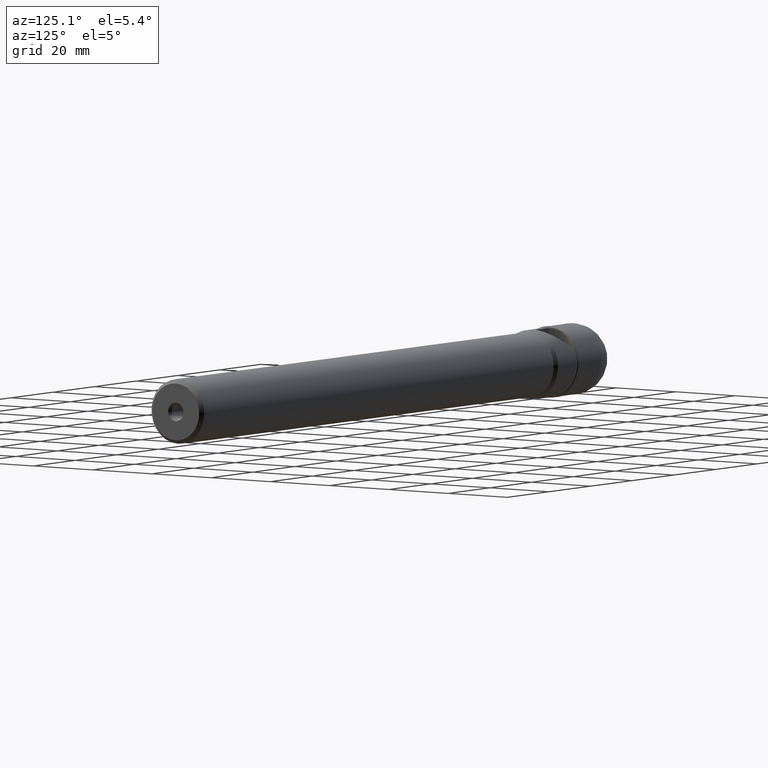
[diagram: clean part render]
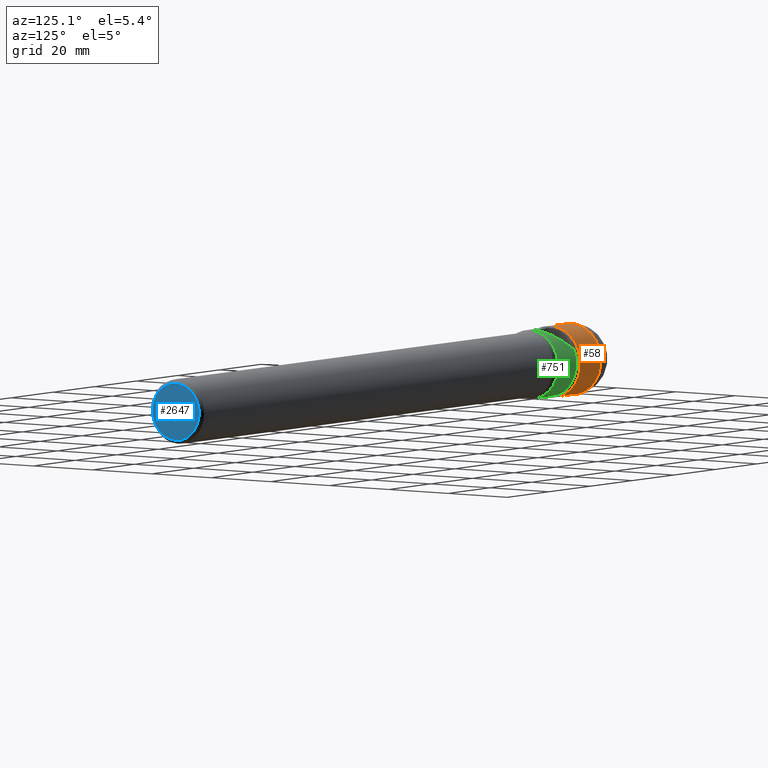
[diagram: same view with three faces highlighted in distinct colors, each labeled with its STEP entity id]
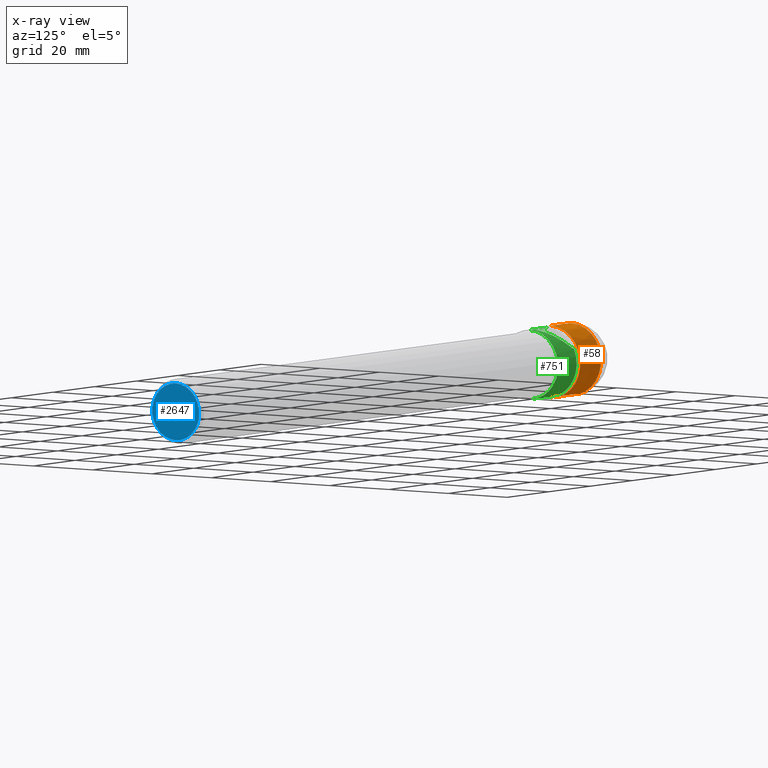
[diagram: x-ray of the same camera — body ghosted, the three highlighted faces saturated]
A machine part, auxiliary view with three faces highlighted in distinct colors.
The next image is the same camera in x-ray (body ghosted, the three faces saturated) — at least one of them is partly hidden behind the body in this view.
Their STEP definitions:

[orange] entity #58 — the highlighted conical surface has half-angle 0.193 deg.
#55 = EDGE_CURVE ( 'NONE', #1018, #1737, #1611, .T. ) ;
#58 = ADVANCED_FACE ( 'NONE', ( #2640 ), #3410, .T. ) ;
#113 = EDGE_CURVE ( 'NONE', #3440, #2303, #1748, .T. ) ;
#256 = AXIS2_PLACEMENT_3D ( 'NONE', #3720, #792, #3131 ) ;
#289 = DIRECTION ( 'NONE',  ( 1.000000000000000000, 0.0000000000000000000, 0.0000000000000000000 ) ) ;
#396 = ORIENTED_EDGE ( 'NONE', *, *, #2008, .F. ) ;
#731 = LINE ( 'NONE', #1914, #1837 ) ;
#791 = AXIS2_PLACEMENT_3D ( 'NONE', #2410, #1469, #2374 ) ;
#792 = DIRECTION ( 'NONE',  ( -1.000000000000000000, -0.0000000000000000000, -0.0000000000000000000 ) ) ;
#1018 = VERTEX_POINT ( 'NONE', #2857 ) ;
#1383 = DIRECTION ( 'NONE',  ( 0.9999943437071451280, 0.0000000000000000000, -0.003363413997101217124 ) ) ;
#1392 = AXIS2_PLACEMENT_3D ( 'NONE', #3260, #289, #2286 ) ;
#1469 = DIRECTION ( 'NONE',  ( -1.000000000000000000, -0.0000000000000000000, -0.0000000000000000000 ) ) ;
#1611 = CIRCLE ( 'NONE', #791, 9.917655915778976095 ) ;
#1644 = LINE ( 'NONE', #3683, #3546 ) ;
#1694 = CARTESIAN_POINT ( 'NONE',  ( 9.977918817990545364, 1.214562557230353628E-15, -9.917655915778977871 ) ) ;
#1737 = VERTEX_POINT ( 'NONE', #1694 ) ;
#1748 = CIRCLE ( 'NONE', #256, 9.951121269423111926 ) ;
#1837 = VECTOR ( 'NONE', #1383, 1000.000000000000114 ) ;
#1848 = ORIENTED_EDGE ( 'NONE', *, *, #55, .F. ) ;
#1914 = CARTESIAN_POINT ( 'NONE',  ( 9.977918817990545364, 0.0000000000000000000, -9.917655915778976095 ) ) ;
#2008 = EDGE_CURVE ( 'NONE', #1737, #2303, #731, .T. ) ;
#2010 = ORIENTED_EDGE ( 'NONE', *, *, #113, .T. ) ;
#2094 = CARTESIAN_POINT ( 'NONE',  ( 19.92767950256220999, 1.218660881052615963E-15, 9.951121269423111926 ) ) ;
#2209 = ORIENTED_EDGE ( 'NONE', *, *, #3126, .T. ) ;
#2286 = DIRECTION ( 'NONE',  ( 0.0000000000000000000, 0.0000000000000000000, -1.000000000000000000 ) ) ;
#2303 = VERTEX_POINT ( 'NONE', #3734 ) ;
#2374 = DIRECTION ( 'NONE',  ( 0.0000000000000000000, 0.0000000000000000000, 1.000000000000000000 ) ) ;
#2410 = CARTESIAN_POINT ( 'NONE',  ( 9.977918817990545364, 0.0000000000000000000, 0.0000000000000000000 ) ) ;
#2640 = FACE_OUTER_BOUND ( 'NONE', #3626, .T. ) ;
#2857 = CARTESIAN_POINT ( 'NONE',  ( 9.977918817990545364, 0.0000000000000000000, 9.917655915778977871 ) ) ;
#3126 = EDGE_CURVE ( 'NONE', #1018, #3440, #1644, .T. ) ;
#3131 = DIRECTION ( 'NONE',  ( 0.0000000000000000000, 0.0000000000000000000, 1.000000000000000000 ) ) ;
#3260 = CARTESIAN_POINT ( 'NONE',  ( 9.977918817990545364, 0.0000000000000000000, 0.0000000000000000000 ) ) ;
#3410 = CONICAL_SURFACE ( 'NONE', #1392, 9.917655915778976095, 0.003363420338600418315 ) ;
#3440 = VERTEX_POINT ( 'NONE', #2094 ) ;
#3546 = VECTOR ( 'NONE', #3705, 1000.000000000000114 ) ;
#3626 = EDGE_LOOP ( 'NONE', ( #1848, #2209, #2010, #396 ) ) ;
#3683 = CARTESIAN_POINT ( 'NONE',  ( 9.977918817990545364, 1.214562557230353431E-15, 9.917655915778976095 ) ) ;
#3705 = DIRECTION ( 'NONE',  ( 0.9999943437071451280, 4.118994185757410927E-19, 0.003363413997101217124 ) ) ;
#3720 = CARTESIAN_POINT ( 'NONE',  ( 19.92767950256220999, 0.0000000000000000000, 0.0000000000000000000 ) ) ;
#3734 = CARTESIAN_POINT ( 'NONE',  ( 19.92767950256220999, 0.0000000000000000000, -9.951121269423111926 ) ) ;

[blue] entity #2647 — the highlighted planar face has unit normal (-1, 0, -0).
#69 = ORIENTED_EDGE ( 'NONE', *, *, #346, .T. ) ;
#144 = AXIS2_PLACEMENT_3D ( 'NONE', #868, #2726, #1001 ) ;
#188 = VERTEX_POINT ( 'NONE', #2803 ) ;
#263 = CARTESIAN_POINT ( 'NONE',  ( 200.0372464299999820, 0.0000000000000000000, 0.0000000000000000000 ) ) ;
#293 = DIRECTION ( 'NONE',  ( -1.000000000000000000, -0.0000000000000000000, -0.0000000000000000000 ) ) ;
#296 = FACE_OUTER_BOUND ( 'NONE', #2665, .T. ) ;
#346 = EDGE_CURVE ( 'NONE', #188, #2931, #1282, .T. ) ;
#475 = AXIS2_PLACEMENT_3D ( 'NONE', #263, #3396, #1334 ) ;
#478 = VERTEX_POINT ( 'NONE', #2201 ) ;
#530 = CARTESIAN_POINT ( 'NONE',  ( 200.0372464299999820, 7.900000000000000355, 0.0000000000000000000 ) ) ;
#544 = DIRECTION ( 'NONE',  ( 0.0000000000000000000, 0.0000000000000000000, 1.000000000000000000 ) ) ;
#868 = CARTESIAN_POINT ( 'NONE',  ( 200.0372464299999820, 0.0000000000000000000, 0.0000000000000000000 ) ) ;
#982 = DIRECTION ( 'NONE',  ( -1.000000000000000000, -0.0000000000000000000, -0.0000000000000000000 ) ) ;
#983 = EDGE_CURVE ( 'NONE', #1773, #478, #3437, .T. ) ;
#1001 = DIRECTION ( 'NONE',  ( 0.0000000000000000000, 0.0000000000000000000, 1.000000000000000000 ) ) ;
#1282 = CIRCLE ( 'NONE', #144, 2.577350269189619514 ) ;
#1334 = DIRECTION ( 'NONE',  ( 0.0000000000000000000, 0.0000000000000000000, 1.000000000000000000 ) ) ;
#1539 = DIRECTION ( 'NONE',  ( 0.0000000000000000000, 0.0000000000000000000, 1.000000000000000000 ) ) ;
#1647 = FACE_BOUND ( 'NONE', #1659, .T. ) ;
#1659 = EDGE_LOOP ( 'NONE', ( #2633, #69 ) ) ;
#1773 = VERTEX_POINT ( 'NONE', #3399 ) ;
#2201 = CARTESIAN_POINT ( 'NONE',  ( 200.0372464299999820, 0.0000000000000000000, 7.900000000000000355 ) ) ;
#2353 = CIRCLE ( 'NONE', #475, 7.900000000000000355 ) ;
#2497 = AXIS2_PLACEMENT_3D ( 'NONE', #530, #2860, #2827 ) ;
#2561 = CARTESIAN_POINT ( 'NONE',  ( 200.0372464299999820, 0.0000000000000000000, 0.0000000000000000000 ) ) ;
#2633 = ORIENTED_EDGE ( 'NONE', *, *, #3408, .T. ) ;
#2647 = ADVANCED_FACE ( 'NONE', ( #296, #1647 ), #3139, .F. ) ;
#2665 = EDGE_LOOP ( 'NONE', ( #3462, #2868 ) ) ;
#2726 = DIRECTION ( 'NONE',  ( -1.000000000000000000, -0.0000000000000000000, -0.0000000000000000000 ) ) ;
#2803 = CARTESIAN_POINT ( 'NONE',  ( 200.0372464299999820, 3.156343757444636305E-16, 2.577350269189619514 ) ) ;
#2827 = DIRECTION ( 'NONE',  ( -0.0000000000000000000, 0.0000000000000000000, 1.000000000000000000 ) ) ;
#2860 = DIRECTION ( 'NONE',  ( -1.000000000000000000, 0.0000000000000000000, -0.0000000000000000000 ) ) ;
#2868 = ORIENTED_EDGE ( 'NONE', *, *, #983, .F. ) ;
#2931 = VERTEX_POINT ( 'NONE', #3318 ) ;
#2962 = AXIS2_PLACEMENT_3D ( 'NONE', #3640, #982, #1539 ) ;
#3074 = CIRCLE ( 'NONE', #2962, 2.577350269189619514 ) ;
#3139 = PLANE ( 'NONE',  #2497 ) ;
#3318 = CARTESIAN_POINT ( 'NONE',  ( 200.0372464299999820, 0.0000000000000000000, -2.577350269189619514 ) ) ;
#3396 = DIRECTION ( 'NONE',  ( -1.000000000000000000, -0.0000000000000000000, -0.0000000000000000000 ) ) ;
#3399 = CARTESIAN_POINT ( 'NONE',  ( 200.0372464299999820, 1.028703311283777374E-15, -7.900000000000000355 ) ) ;
#3408 = EDGE_CURVE ( 'NONE', #2931, #188, #3074, .T. ) ;
#3437 = CIRCLE ( 'NONE', #3562, 7.900000000000000355 ) ;
#3462 = ORIENTED_EDGE ( 'NONE', *, *, #3536, .F. ) ;
#3536 = EDGE_CURVE ( 'NONE', #478, #1773, #2353, .T. ) ;
#3562 = AXIS2_PLACEMENT_3D ( 'NONE', #2561, #293, #544 ) ;
#3640 = CARTESIAN_POINT ( 'NONE',  ( 200.0372464299999820, 0.0000000000000000000, 0.0000000000000000000 ) ) ;

[green] entity #751 — the highlighted cylindrical surface (edge-blend (fillet) strip) has radius 9.5431 mm, axis along (-1, -0, -0).
#22 = ORIENTED_EDGE ( 'NONE', *, *, #159, .T. ) ;
#41 = CARTESIAN_POINT ( 'NONE',  ( 22.50406135753765824, 1.902478379999999802, -9.351572390519709899 ) ) ;
#98 = ORIENTED_EDGE ( 'NONE', *, *, #2741, .T. ) ;
#159 = EDGE_CURVE ( 'NONE', #534, #3333, #2840, .T. ) ;
#192 = CARTESIAN_POINT ( 'NONE',  ( 22.22240437256096257, 0.0000000000000000000, 9.543129998145154502 ) ) ;
#223 = EDGE_CURVE ( 'NONE', #2336, #1190, #1361, .T. ) ;
#225 = CIRCLE ( 'NONE', #2333, 9.543129998145154502 ) ;
#235 = CARTESIAN_POINT ( 'NONE',  ( -4.762142644779060241, 3.402478379999999802, -8.915967195718618399 ) ) ;
#295 = B_SPLINE_CURVE_WITH_KNOTS ( 'NONE', 3,
 ( #1526, #2698, #1009, #2160, #1325, #3315, #3069, #2785 ),
 .UNSPECIFIED., .F., .F.,
 ( 4, 2, 2, 4 ),
 ( 4.336808689942017255E-19, 0.0001028661641202389791, 0.0002057323282404775245, 0.0004114646564809544527 ),
 .UNSPECIFIED. ) ;
#374 = VERTEX_POINT ( 'NONE', #408 ) ;
#382 = VERTEX_POINT ( 'NONE', #1845 ) ;
#391 = EDGE_CURVE ( 'NONE', #534, #1480, #896, .T. ) ;
#408 = CARTESIAN_POINT ( 'NONE',  ( 21.12077164187794764, 8.651164288950001335, 4.028484405715644812 ) ) ;
#451 = CARTESIAN_POINT ( 'NONE',  ( 22.50406135753765824, 1.902478379999999802, -9.351572390519709899 ) ) ;
#534 = VERTEX_POINT ( 'NONE', #1081 ) ;
#550 = CARTESIAN_POINT ( 'NONE',  ( 22.19334719174611337, 3.402478379999999802, -8.915967195718618399 ) ) ;
#751 = ADVANCED_FACE ( 'NONE', ( #3648 ), #1579, .T. ) ;
#772 = EDGE_CURVE ( 'NONE', #2181, #2336, #2326, .T. ) ;
#799 = CARTESIAN_POINT ( 'NONE',  ( 28.33596297117660612, 0.8509774399999997518, 9.505112706228631581 ) ) ;
#852 = VECTOR ( 'NONE', #3701, 1000.000000000000000 ) ;
#855 =( BOUNDED_CURVE ( )  B_SPLINE_CURVE ( 3, ( #41, #1445, #3114, #1153 ),
 .UNSPECIFIED., .F., .T. ) 
 B_SPLINE_CURVE_WITH_KNOTS ( ( 4, 4 ),
 ( 2.264321295998039663, 2.465021783903519115 ),
 .UNSPECIFIED. ) 
 CURVE ( )  GEOMETRIC_REPRESENTATION_ITEM ( )  RATIONAL_B_SPLINE_CURVE ( ( 1.000000000000000000, 0.9966460921328584854, 0.9966460921328584854, 1.000000000000000000 ) ) 
 REPRESENTATION_ITEM ( '' )  );
#857 = CARTESIAN_POINT ( 'NONE',  ( 28.33596297117660612, 0.8509774399999997518, 9.505112706228631581 ) ) ;
#896 =( BOUNDED_CURVE ( )  B_SPLINE_CURVE ( 3, ( #550, #1688, #3046, #451 ),
 .UNSPECIFIED., .F., .T. ) 
 B_SPLINE_CURVE_WITH_KNOTS ( ( 4, 4 ),
 ( 2.777034049507229430, 2.940892165684313664 ),
 .UNSPECIFIED. ) 
 CURVE ( )  GEOMETRIC_REPRESENTATION_ITEM ( )  RATIONAL_B_SPLINE_CURVE ( ( 1.000000000000000000, 0.9977637944202043530, 0.9977637944202043530, 1.000000000000000000 ) ) 
 REPRESENTATION_ITEM ( '' )  );
#988 = ORIENTED_EDGE ( 'NONE', *, *, #1428, .T. ) ;
#1009 = CARTESIAN_POINT ( 'NONE',  ( 28.32755036790564773, 0.7818658670980034309, 9.511085161488065154 ) ) ;
#1024 = DIRECTION ( 'NONE',  ( 0.0000000000000000000, 0.0000000000000000000, 1.000000000000000000 ) ) ;
#1047 = CARTESIAN_POINT ( 'NONE',  ( 21.12077164187794764, 0.0000000000000000000, 0.0000000000000000000 ) ) ;
#1081 = CARTESIAN_POINT ( 'NONE',  ( 22.19334719174611337, 3.402478379999999802, -8.915967195718618399 ) ) ;
#1127 = CARTESIAN_POINT ( 'NONE',  ( 30.03724642999997130, 1.168696360607554739E-15, -9.543129998145152726 ) ) ;
#1153 = CARTESIAN_POINT ( 'NONE',  ( 23.73039629956289076, 1.168696360607554936E-15, -9.543129998145154502 ) ) ;
#1190 = VERTEX_POINT ( 'NONE', #2944 ) ;
#1199 = VERTEX_POINT ( 'NONE', #2965 ) ;
#1240 = AXIS2_PLACEMENT_3D ( 'NONE', #1876, #2988, #1024 ) ;
#1284 = EDGE_CURVE ( 'NONE', #2450, #1199, #295, .T. ) ;
#1316 = EDGE_CURVE ( 'NONE', #382, #1922, #1395, .T. ) ;
#1325 = CARTESIAN_POINT ( 'NONE',  ( 28.25559429379943310, 0.7080737065002691288, 9.516837217228241386 ) ) ;
#1361 = LINE ( 'NONE', #3169, #852 ) ;
#1369 = ORIENTED_EDGE ( 'NONE', *, *, #1316, .F. ) ;
#1381 = CARTESIAN_POINT ( 'NONE',  ( 27.92624542388029951, 4.324652596164970220, 9.194120161148360282 ) ) ;
#1395 =( BOUNDED_CURVE ( )  B_SPLINE_CURVE ( 3, ( #192, #1560, #1621, #2751 ),
 .UNSPECIFIED., .F., .T. ) 
 B_SPLINE_CURVE_WITH_KNOTS ( ( 4, 4 ),
 ( 2.452695705409258853, 2.520962967106989083 ),
 .UNSPECIFIED. ) 
 CURVE ( )  GEOMETRIC_REPRESENTATION_ITEM ( )  RATIONAL_B_SPLINE_CURVE ( ( 1.000000000000000000, 0.9996116694543681902, 0.9996116694543681902, 1.000000000000000000 ) ) 
 REPRESENTATION_ITEM ( '' )  );
#1408 = VECTOR ( 'NONE', #3429, 1000.000000000000000 ) ;
#1411 = CARTESIAN_POINT ( 'NONE',  ( -4.762142644779060241, 0.6509774400000000183, 9.520901140864186374 ) ) ;
#1428 = EDGE_CURVE ( 'NONE', #1199, #1922, #3108, .T. ) ;
#1445 = CARTESIAN_POINT ( 'NONE',  ( 22.95394448141299293, 1.275804350308979540, -9.479062586072627639 ) ) ;
#1480 = VERTEX_POINT ( 'NONE', #1643 ) ;
#1526 = CARTESIAN_POINT ( 'NONE',  ( 28.33596297117660612, 0.8509774399999997518, 9.505112706228631581 ) ) ;
#1544 = ORIENTED_EDGE ( 'NONE', *, *, #1284, .T. ) ;
#1554 = CARTESIAN_POINT ( 'NONE',  ( -4.762142644779060241, 0.0000000000000000000, 9.543129998145154502 ) ) ;
#1560 = CARTESIAN_POINT ( 'NONE',  ( 22.34528775637009801, 0.2172032975560520829, 9.543129998145156279 ) ) ;
#1562 = CARTESIAN_POINT ( 'NONE',  ( -4.762142644779060241, 0.0000000000000000000, 0.0000000000000000000 ) ) ;
#1579 = CYLINDRICAL_SURFACE ( 'NONE', #2865, 9.543129998145154502 ) ;
#1617 = CARTESIAN_POINT ( 'NONE',  ( 21.12077164187796186, 3.402478379999999802, -8.915967195718618399 ) ) ;
#1621 = CARTESIAN_POINT ( 'NONE',  ( 22.46300699726473837, 0.4342800750995183257, 9.535717500552264525 ) ) ;
#1628 = DIRECTION ( 'NONE',  ( 1.000000000000000000, 0.0000000000000000000, 0.0000000000000000000 ) ) ;
#1643 = CARTESIAN_POINT ( 'NONE',  ( 22.50406135753765824, 1.902478379999999802, -9.351572390519709899 ) ) ;
#1688 = CARTESIAN_POINT ( 'NONE',  ( 22.32605496847934390, 2.914948253501325137, -9.102016636973509378 ) ) ;
#1825 = DIRECTION ( 'NONE',  ( -1.000000000000000000, -0.0000000000000000000, -0.0000000000000000000 ) ) ;
#1845 = CARTESIAN_POINT ( 'NONE',  ( 22.22240437256096257, 0.0000000000000000000, 9.543129998145154502 ) ) ;
#1876 = CARTESIAN_POINT ( 'NONE',  ( 30.03724642999997130, 0.0000000000000000000, 0.0000000000000000000 ) ) ;
#1910 = EDGE_CURVE ( 'NONE', #2181, #382, #3028, .T. ) ;
#1922 = VERTEX_POINT ( 'NONE', #3048 ) ;
#2020 = VECTOR ( 'NONE', #2167, 1000.000000000000000 ) ;
#2031 = EDGE_CURVE ( 'NONE', #3333, #374, #225, .T. ) ;
#2147 = DIRECTION ( 'NONE',  ( 0.0000000000000000000, 0.0000000000000000000, 1.000000000000000000 ) ) ;
#2158 = ORIENTED_EDGE ( 'NONE', *, *, #391, .F. ) ;
#2160 = CARTESIAN_POINT ( 'NONE',  ( 28.28461132773247400, 0.7281822220888067854, 9.515345807412634471 ) ) ;
#2167 = DIRECTION ( 'NONE',  ( -1.000000000000000000, -0.0000000000000000000, -0.0000000000000000000 ) ) ;
#2181 = VERTEX_POINT ( 'NONE', #2358 ) ;
#2203 = DIRECTION ( 'NONE',  ( 0.0000000000000000000, 0.0000000000000000000, 1.000000000000000000 ) ) ;
#2210 = DIRECTION ( 'NONE',  ( -1.000000000000000000, -0.0000000000000000000, -0.0000000000000000000 ) ) ;
#2293 = CARTESIAN_POINT ( 'NONE',  ( 21.12077164187794764, 8.651164288950001335, 4.028484405715644812 ) ) ;
#2326 = CIRCLE ( 'NONE', #1240, 9.543129998145152726 ) ;
#2333 = AXIS2_PLACEMENT_3D ( 'NONE', #1047, #1628, #2203 ) ;
#2336 = VERTEX_POINT ( 'NONE', #1127 ) ;
#2338 = ORIENTED_EDGE ( 'NONE', *, *, #2579, .F. ) ;
#2358 = CARTESIAN_POINT ( 'NONE',  ( 30.03724642999997130, 0.0000000000000000000, 9.543129998145152726 ) ) ;
#2450 = VERTEX_POINT ( 'NONE', #799 ) ;
#2516 = ORIENTED_EDGE ( 'NONE', *, *, #1910, .F. ) ;
#2579 = EDGE_CURVE ( 'NONE', #1480, #1190, #855, .T. ) ;
#2698 = CARTESIAN_POINT ( 'NONE',  ( 28.34003499072746379, 0.8164539658589407001, 9.508203537295285557 ) ) ;
#2733 = VECTOR ( 'NONE', #2210, 1000.000000000000000 ) ;
#2741 = EDGE_CURVE ( 'NONE', #374, #2450, #2887, .T. ) ;
#2751 = CARTESIAN_POINT ( 'NONE',  ( 22.57542495331374610, 0.6509774399999995742, 9.520901140864189927 ) ) ;
#2785 = CARTESIAN_POINT ( 'NONE',  ( 28.02596576005485929, 0.6509774400000000183, 9.520901140864186374 ) ) ;
#2840 = LINE ( 'NONE', #235, #2733 ) ;
#2865 = AXIS2_PLACEMENT_3D ( 'NONE', #1562, #1825, #2147 ) ;
#2887 =( BOUNDED_CURVE ( )  B_SPLINE_CURVE ( 3, ( #2293, #3469, #1381, #857 ),
 .UNSPECIFIED., .F., .T. ) 
 B_SPLINE_CURVE_WITH_KNOTS ( ( 4, 4 ),
 ( 2.006594933638763845, 3.052302319440477252 ),
 .UNSPECIFIED. ) 
 CURVE ( )  GEOMETRIC_REPRESENTATION_ITEM ( )  RATIONAL_B_SPLINE_CURVE ( ( 1.000000000000000000, 0.9109318031416454575, 0.9109318031416454575, 1.000000000000000000 ) ) 
 REPRESENTATION_ITEM ( '' )  );
#2913 = ORIENTED_EDGE ( 'NONE', *, *, #2031, .T. ) ;
#2944 = CARTESIAN_POINT ( 'NONE',  ( 23.73039629956289076, 1.168696360607554936E-15, -9.543129998145154502 ) ) ;
#2965 = CARTESIAN_POINT ( 'NONE',  ( 28.02596576005485929, 0.6509774400000000183, 9.520901140864186374 ) ) ;
#2988 = DIRECTION ( 'NONE',  ( -1.000000000000000000, -0.0000000000000000000, -0.0000000000000000000 ) ) ;
#3028 = LINE ( 'NONE', #1554, #2020 ) ;
#3046 = CARTESIAN_POINT ( 'NONE',  ( 22.42985848307505847, 2.413827644799997341, -9.247543797221633000 ) ) ;
#3048 = CARTESIAN_POINT ( 'NONE',  ( 22.57542495331374610, 0.6509774399999995742, 9.520901140864189927 ) ) ;
#3069 = CARTESIAN_POINT ( 'NONE',  ( 28.09482675641577387, 0.6509774399999990191, 9.520901140864186374 ) ) ;
#3108 = LINE ( 'NONE', #1411, #1408 ) ;
#3114 = CARTESIAN_POINT ( 'NONE',  ( 23.36409841392238462, 0.6395108204333188606, -9.543129998145150950 ) ) ;
#3142 = ORIENTED_EDGE ( 'NONE', *, *, #223, .T. ) ;
#3169 = CARTESIAN_POINT ( 'NONE',  ( -4.762142644779060241, 1.168696360607554936E-15, -9.543129998145154502 ) ) ;
#3184 = EDGE_LOOP ( 'NONE', ( #3352, #3142, #2338, #2158, #22, #2913, #98, #1544, #988, #1369, #2516 ) ) ;
#3315 = CARTESIAN_POINT ( 'NONE',  ( 28.16348890844364661, 0.6628119792255032783, 9.520132654951538598 ) ) ;
#3333 = VERTEX_POINT ( 'NONE', #1617 ) ;
#3352 = ORIENTED_EDGE ( 'NONE', *, *, #772, .T. ) ;
#3429 = DIRECTION ( 'NONE',  ( -1.000000000000000000, -0.0000000000000000000, -0.0000000000000000000 ) ) ;
#3469 = CARTESIAN_POINT ( 'NONE',  ( 25.28602167920672272, 7.178941220204849039, 7.190081263239997078 ) ) ;
#3648 = FACE_OUTER_BOUND ( 'NONE', #3184, .T. ) ;
#3701 = DIRECTION ( 'NONE',  ( -1.000000000000000000, -0.0000000000000000000, -0.0000000000000000000 ) ) ;